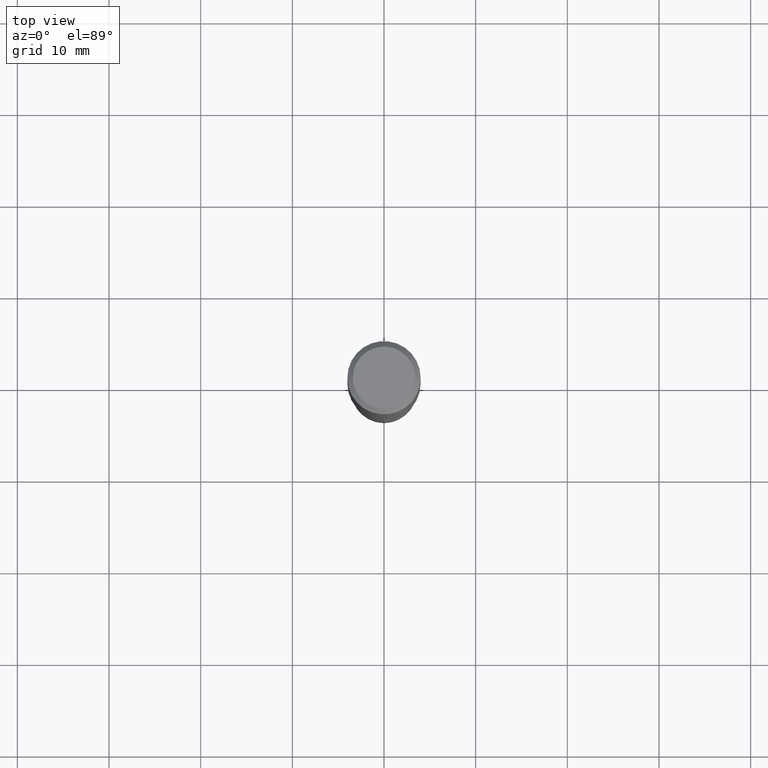
[diagram: clean part render]
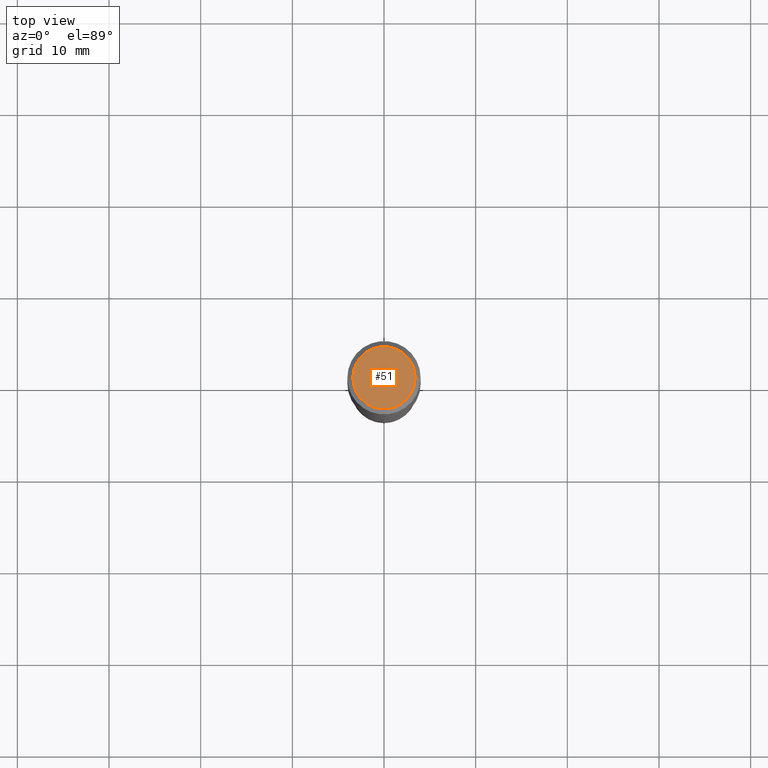
[diagram: same view with one face highlighted and labeled with its STEP entity id]
A machine part, top view. The second image highlights one B-rep face of the part: STEP entity #51.
In plain terms, the highlighted planar face has unit normal (0, -0, -1).
Its self-contained STEP definition (entity closure, byte-faithful):
#12 = AXIS2_PLACEMENT_3D ( 'NONE', #373, #444, #188 ) ;
#21 = CARTESIAN_POINT ( 'NONE',  ( -1.002970424325033577E-46, 1.431975951230896486E-32, 4.101342130344485961E-18 ) ) ;
#36 = DIRECTION ( 'NONE',  ( -2.445468806185136597E-29, 3.491481338843145583E-15, 1.000000000000000000 ) ) ;
#47 = CIRCLE ( 'NONE', #199, 0.1338749999999999940 ) ;
#51 = ADVANCED_FACE ( 'NONE', ( #69 ), #448, .F. ) ;
#69 = FACE_OUTER_BOUND ( 'NONE', #344, .T. ) ;
#78 = DIRECTION ( 'NONE',  ( 1.000000000000000000, -6.982962677686266711E-15, 4.876170806578254279E-29 ) ) ;
#138 = AXIS2_PLACEMENT_3D ( 'NONE', #419, #36, #78 ) ;
#140 = VERTEX_POINT ( 'NONE', #366 ) ;
#188 = DIRECTION ( 'NONE',  ( -1.000000000000000000, 6.982962677686265922E-15, -4.876176775795935793E-29 ) ) ;
#193 = ORIENTED_EDGE ( 'NONE', *, *, #255, .T. ) ;
#199 = AXIS2_PLACEMENT_3D ( 'NONE', #21, #394, #389 ) ;
#255 = EDGE_CURVE ( 'NONE', #326, #140, #437, .T. ) ;
#316 = CARTESIAN_POINT ( 'NONE',  ( 0.1338749999999999940, -1.040731925365424925E-15, 4.101342130351393887E-18 ) ) ;
#326 = VERTEX_POINT ( 'NONE', #316 ) ;
#344 = EDGE_LOOP ( 'NONE', ( #382, #193 ) ) ;
#349 = EDGE_CURVE ( 'NONE', #140, #326, #47, .T. ) ;
#366 = CARTESIAN_POINT ( 'NONE',  ( -0.1338749999999999940, 9.760872517903331886E-16, 4.101342130337804525E-18 ) ) ;
#373 = CARTESIAN_POINT ( 'NONE',  ( -5.014852121625167883E-47, 7.159879756154482429E-33, 2.050671065172242981E-18 ) ) ;
#382 = ORIENTED_EDGE ( 'NONE', *, *, #349, .T. ) ;
#389 = DIRECTION ( 'NONE',  ( 1.000000000000000000, -6.982962677686266711E-15, 4.876170806578254279E-29 ) ) ;
#394 = DIRECTION ( 'NONE',  ( -2.445468806185136597E-29, 3.491481338843145583E-15, 1.000000000000000000 ) ) ;
#419 = CARTESIAN_POINT ( 'NONE',  ( -1.002970424325033577E-46, 1.431975951230896486E-32, 4.101342130344485961E-18 ) ) ;
#437 = CIRCLE ( 'NONE', #138, 0.1338749999999999940 ) ;
#444 = DIRECTION ( 'NONE',  ( 2.438088387897960049E-29, -3.491481338843145188E-15, -1.000000000000000000 ) ) ;
#448 = PLANE ( 'NONE',  #12 ) ;